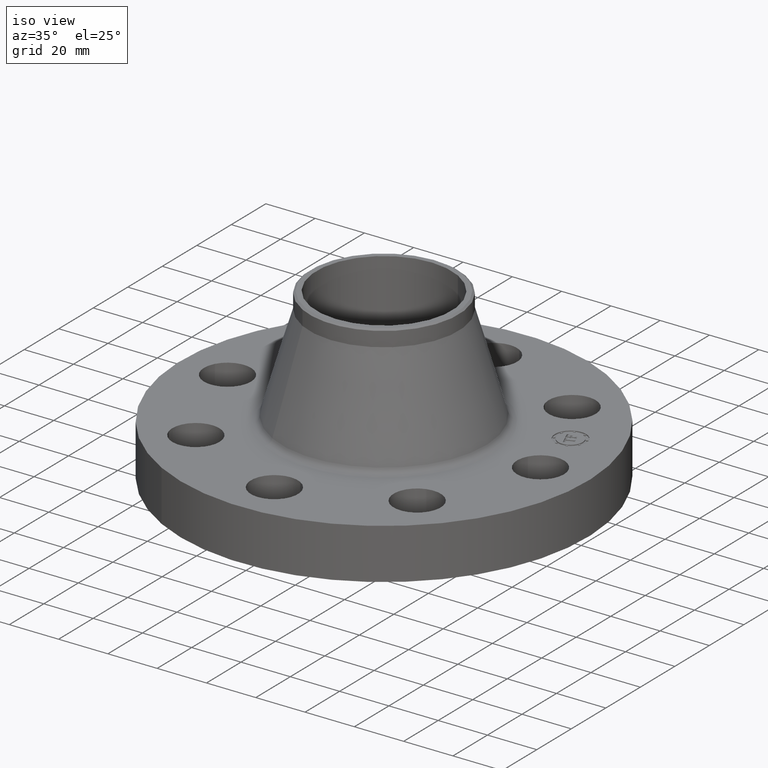
[diagram: clean part render]
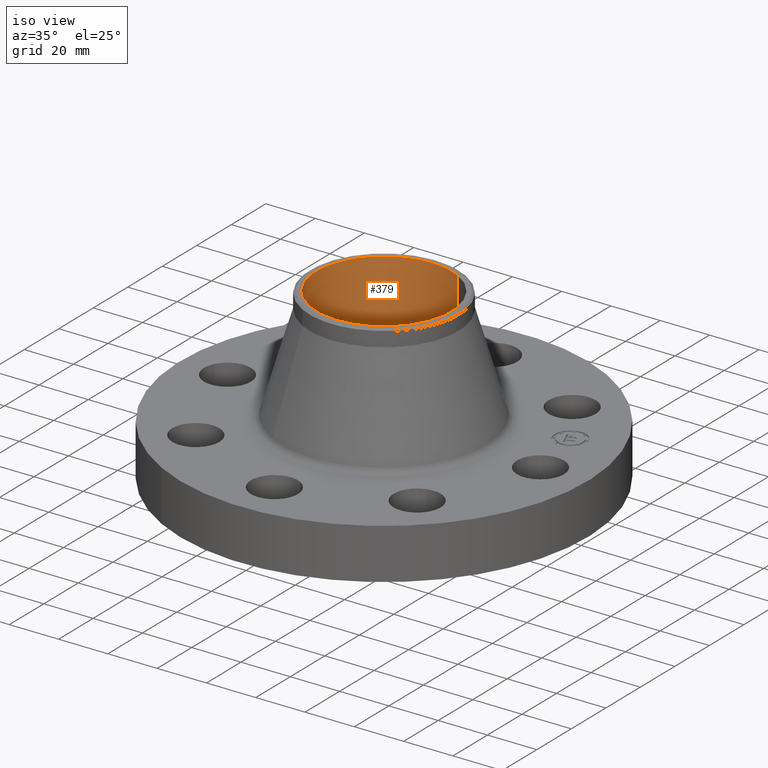
[diagram: same view with one face highlighted and labeled with its STEP entity id]
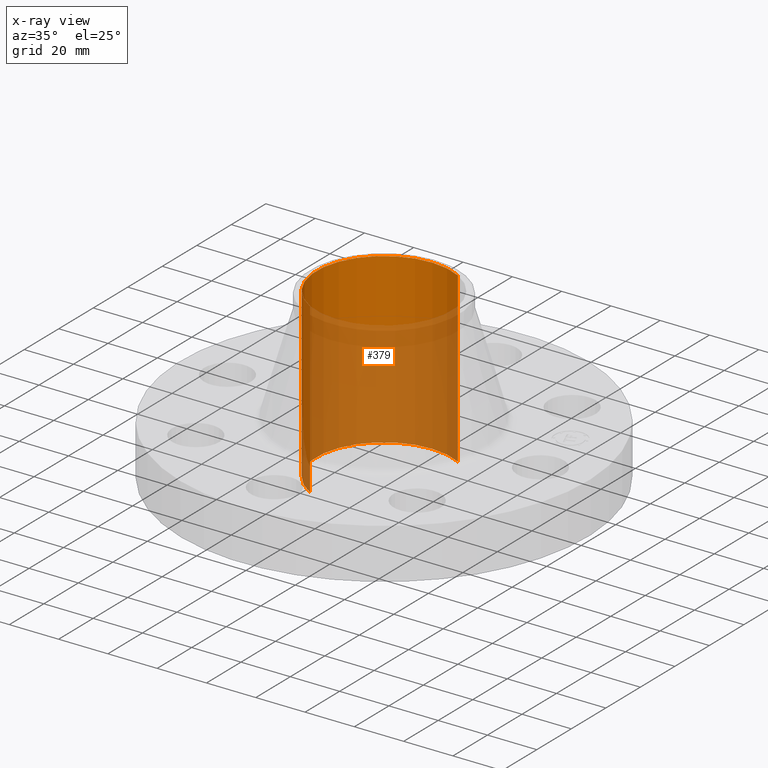
[diagram: x-ray of the same camera — body ghosted, the highlighted face saturated]
A machine part, iso view. The second image highlights one B-rep face of the part: STEP entity #379.
The next image is the same camera in x-ray: the body ghosted, the highlighted face saturated — about 66% of this face is hidden behind the body in this view.
In plain terms, the highlighted cylindrical surface (partial cylindrical patch) has radius 27.3939 mm, axis along (0, 0, -1).
Its self-contained STEP definition (entity closure, byte-faithful):
#343=AXIS2_PLACEMENT_3D('Cylinder Axis2P3D',#340,#341,#342) ;
#347=AXIS2_PLACEMENT_3D('Circle Axis2P3D',#345,#346,$) ;
#363=AXIS2_PLACEMENT_3D('Circle Axis2P3D',#361,#362,$) ;
#340=CARTESIAN_POINT('Axis2P3D Location',(0.,0.,1.34500000001)) ;
#345=CARTESIAN_POINT('Axis2P3D Location',(0.,0.,2.69000000001)) ;
#349=CARTESIAN_POINT('Vertex',(-0.517060443387,-0.946472793003,2.69000000001)) ;
#351=CARTESIAN_POINT('Vertex',(0.517060443387,0.946472793003,2.69000000001)) ;
#354=CARTESIAN_POINT('Line Origine',(-0.517060443387,-0.946472793003,1.34500000001)) ;
#358=CARTESIAN_POINT('Vertex',(-0.517060443387,-0.946472793003,-1.95818864186E-015)) ;
#361=CARTESIAN_POINT('Axis2P3D Location',(0.,0.,-2.23792987641E-015)) ;
#365=CARTESIAN_POINT('Vertex',(0.517060443387,0.946472793003,-1.95818864186E-015)) ;
#368=CARTESIAN_POINT('Line Origine',(0.517060443387,0.946472793003,1.34500000001)) ;
#341=DIRECTION('Axis2P3D Direction',(0.,0.,-0.0393700787402)) ;
#342=DIRECTION('Axis2P3D XDirection',(0.0188750212049,0.0345504945626,0.)) ;
#346=DIRECTION('Axis2P3D Direction',(0.,0.,-0.0393700787402)) ;
#355=DIRECTION('Vector Direction',(0.,0.,-0.0393700787402)) ;
#362=DIRECTION('Axis2P3D Direction',(0.,0.,-0.0393700787402)) ;
#369=DIRECTION('Vector Direction',(0.,0.,-0.0393700787402)) ;
#356=VECTOR('Line Direction',#355,0.0393700787402) ;
#370=VECTOR('Line Direction',#369,0.0393700787402) ;
#374=ORIENTED_EDGE('',*,*,#353,.F.) ;
#375=ORIENTED_EDGE('',*,*,#360,.T.) ;
#376=ORIENTED_EDGE('',*,*,#367,.T.) ;
#377=ORIENTED_EDGE('',*,*,#372,.F.) ;
#379=ADVANCED_FACE('PartBody',(#378),#344,.F.) ;
#348=CIRCLE('generated circle',#347,1.0785) ;
#364=CIRCLE('generated circle',#363,1.0785) ;
#344=CYLINDRICAL_SURFACE('generated cylinder',#343,1.0785) ;
#353=EDGE_CURVE('',#350,#352,#348,.T.) ;
#360=EDGE_CURVE('',#350,#359,#357,.T.) ;
#367=EDGE_CURVE('',#359,#366,#364,.T.) ;
#372=EDGE_CURVE('',#352,#366,#371,.T.) ;
#373=EDGE_LOOP('',(#374,#375,#376,#377)) ;
#378=FACE_OUTER_BOUND('',#373,.T.) ;
#357=LINE('Line',#354,#356) ;
#371=LINE('Line',#368,#370) ;
#350=VERTEX_POINT('',#349) ;
#352=VERTEX_POINT('',#351) ;
#359=VERTEX_POINT('',#358) ;
#366=VERTEX_POINT('',#365) ;